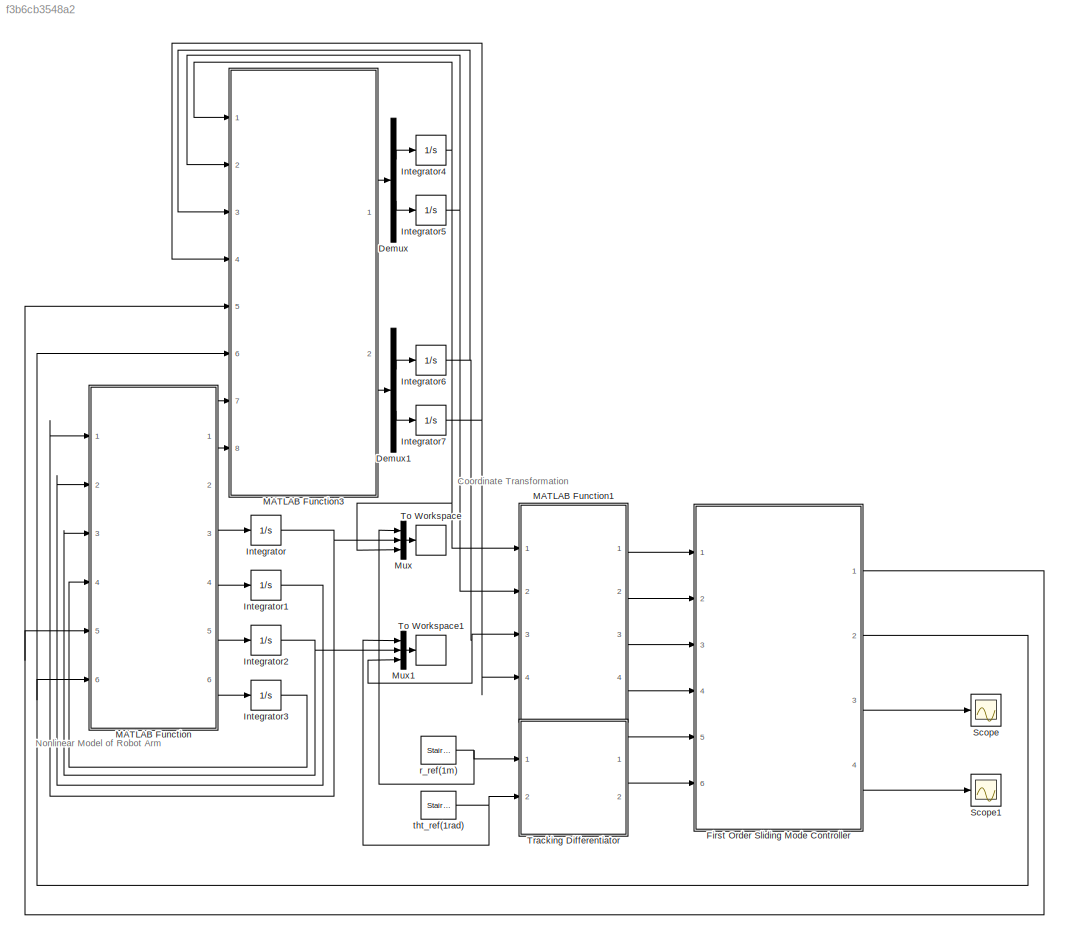
MODEL slx_f3b6cb3548a2
KIND model
CONFIG AbsTol = auto
CONFIG EnableMultiTasking = off
CONFIG FixedStep = 1e-4
CONFIG MaxStep = auto
CONFIG MinStep = auto
CONFIG RelTol = 1e-3
CONFIG SampleTimeConstraint = Unconstrained
CONFIG Solver = ode4
CONFIG SolverName = ode4
CONFIG StartTime = 0.0
CONFIG StopTime = 10
BLOCK [Demux] Demux
  DisplayOption = bar
  Outputs = 2
  Ports = [1, 2]
BLOCK [Demux] Demux1
  DisplayOption = bar
  Outputs = 2
  Ports = [1, 2]
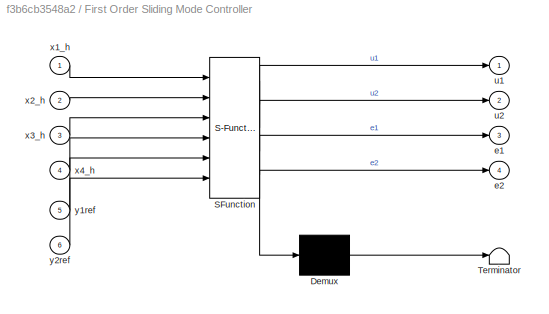
BLOCK [SubSystem] First Order Sliding Mode Controller
  ErrorFcn = Stateflow.Translate.translate
  PermitHierarchicalResolution = ExplicitOnly
  Ports = [6, 4]
  RequestExecContextInheritance = off
  SFBlockType = MATLAB Function
  TreatAsAtomicUnit = on
BLOCK [Demux] First Order Sliding Mode Controller/ Demux 
  Outputs = 1
  Ports = [1, 1]
BLOCK [S-Function] First Order Sliding Mode Controller/ SFunction 
  EnableBusSupport = on
  FunctionName = sf_sfun
  PortCounts = [6 5]
  Ports = [6, 5]
  SFcnIsStateOwnerBlock = off
  SFunctionDeploymentMode = off
  Tag = Stateflow S-Function Tdof_robot_z 3
BLOCK [Terminator] First Order Sliding Mode Controller/ Terminator 
BLOCK [Outport] First Order Sliding Mode Controller/e1
  IconDisplay = Port number
  Port = 3
BLOCK [Outport] First Order Sliding Mode Controller/e2
  IconDisplay = Port number
  Port = 4
BLOCK [Outport] First Order Sliding Mode Controller/u1
  IconDisplay = Port number
BLOCK [Outport] First Order Sliding Mode Controller/u2
  IconDisplay = Port number
  Port = 2
BLOCK [Inport] First Order Sliding Mode Controller/x1_h
  IconDisplay = Port number
BLOCK [Inport] First Order Sliding Mode Controller/x2_h
  IconDisplay = Port number
  Port = 2
BLOCK [Inport] First Order Sliding Mode Controller/x3_h
  IconDisplay = Port number
  Port = 3
BLOCK [Inport] First Order Sliding Mode Controller/x4_h
  IconDisplay = Port number
  Port = 4
BLOCK [Inport] First Order Sliding Mode Controller/y1ref
  IconDisplay = Port number
  Port = 5
BLOCK [Inport] First Order Sliding Mode Controller/y2ref
  IconDisplay = Port number
  Port = 6
BLOCK [Integrator] Integrator
  InitialCondition = 0.01
  Ports = [1, 1]
BLOCK [Integrator] Integrator1
  Ports = [1, 1]
BLOCK [Integrator] Integrator2
  Ports = [1, 1]
BLOCK [Integrator] Integrator3
  Ports = [1, 1]
BLOCK [Integrator] Integrator4
  InitialCondition = 0.3
  Ports = [1, 1]
BLOCK [Integrator] Integrator5
  InitialCondition = 0.01
  Ports = [1, 1]
BLOCK [Integrator] Integrator6
  InitialCondition = 0.4
  Ports = [1, 1]
BLOCK [Integrator] Integrator7
  InitialCondition = 0.01
  Ports = [1, 1]
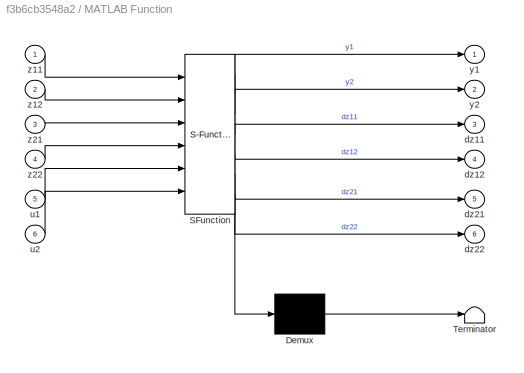
BLOCK [SubSystem] MATLAB Function
  ErrorFcn = Stateflow.Translate.translate
  PermitHierarchicalResolution = ExplicitOnly
  Ports = [6, 6]
  RequestExecContextInheritance = off
  SFBlockType = MATLAB Function
  TreatAsAtomicUnit = on
BLOCK [Demux] MATLAB Function/ Demux 
  Outputs = 1
  Ports = [1, 1]
BLOCK [S-Function] MATLAB Function/ SFunction 
  EnableBusSupport = on
  FunctionName = sf_sfun
  PortCounts = [6 7]
  Ports = [6, 7]
  SFcnIsStateOwnerBlock = off
  SFunctionDeploymentMode = off
  Tag = Stateflow S-Function Tdof_robot_z 2
BLOCK [Terminator] MATLAB Function/ Terminator 
BLOCK [Outport] MATLAB Function/dz11
  IconDisplay = Port number
  Port = 3
BLOCK [Outport] MATLAB Function/dz12
  IconDisplay = Port number
  Port = 4
BLOCK [Outport] MATLAB Function/dz21
  IconDisplay = Port number
  Port = 5
BLOCK [Outport] MATLAB Function/dz22
  IconDisplay = Port number
  Port = 6
BLOCK [Inport] MATLAB Function/u1
  IconDisplay = Port number
  Port = 5
BLOCK [Inport] MATLAB Function/u2
  IconDisplay = Port number
  Port = 6
BLOCK [Outport] MATLAB Function/y1
  IconDisplay = Port number
BLOCK [Outport] MATLAB Function/y2
  IconDisplay = Port number
  Port = 2
BLOCK [Inport] MATLAB Function/z11
  IconDisplay = Port number
BLOCK [Inport] MATLAB Function/z12
  IconDisplay = Port number
  Port = 2
BLOCK [Inport] MATLAB Function/z21
  IconDisplay = Port number
  Port = 3
BLOCK [Inport] MATLAB Function/z22
  IconDisplay = Port number
  Port = 4
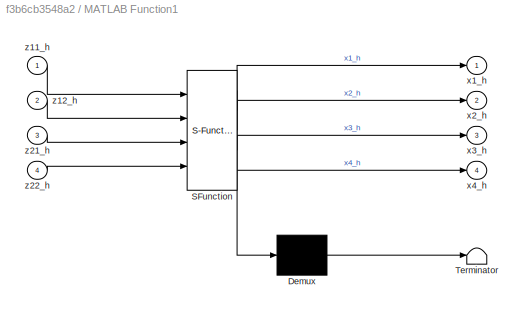
BLOCK [SubSystem] MATLAB Function1
  ErrorFcn = Stateflow.Translate.translate
  PermitHierarchicalResolution = ExplicitOnly
  Ports = [4, 4]
  RequestExecContextInheritance = off
  SFBlockType = MATLAB Function
  TreatAsAtomicUnit = on
BLOCK [Demux] MATLAB Function1/ Demux 
  Outputs = 1
  Ports = [1, 1]
BLOCK [S-Function] MATLAB Function1/ SFunction 
  EnableBusSupport = on
  FunctionName = sf_sfun
  PortCounts = [4 5]
  Ports = [4, 5]
  SFcnIsStateOwnerBlock = off
  SFunctionDeploymentMode = off
  Tag = Stateflow S-Function Tdof_robot_z 1
BLOCK [Terminator] MATLAB Function1/ Terminator 
BLOCK [Outport] MATLAB Function1/x1_h
  IconDisplay = Port number
BLOCK [Outport] MATLAB Function1/x2_h
  IconDisplay = Port number
  Port = 2
BLOCK [Outport] MATLAB Function1/x3_h
  IconDisplay = Port number
  Port = 3
BLOCK [Outport] MATLAB Function1/x4_h
  IconDisplay = Port number
  Port = 4
BLOCK [Inport] MATLAB Function1/z11_h
  IconDisplay = Port number
BLOCK [Inport] MATLAB Function1/z12_h
  IconDisplay = Port number
  Port = 2
BLOCK [Inport] MATLAB Function1/z21_h
  IconDisplay = Port number
  Port = 3
BLOCK [Inport] MATLAB Function1/z22_h
  IconDisplay = Port number
  Port = 4
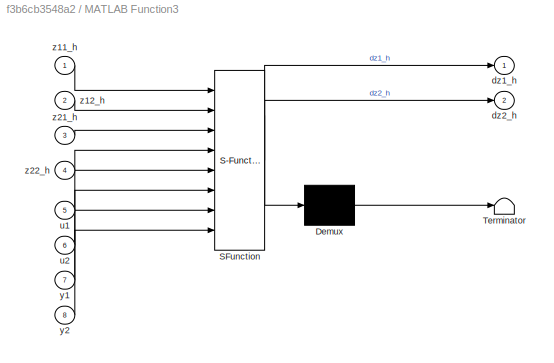
BLOCK [SubSystem] MATLAB Function3
  ErrorFcn = Stateflow.Translate.translate
  PermitHierarchicalResolution = ExplicitOnly
  Ports = [8, 2]
  RequestExecContextInheritance = off
  SFBlockType = MATLAB Function
  TreatAsAtomicUnit = on
BLOCK [Demux] MATLAB Function3/ Demux 
  Outputs = 1
  Ports = [1, 1]
BLOCK [S-Function] MATLAB Function3/ SFunction 
  EnableBusSupport = on
  FunctionName = sf_sfun
  PortCounts = [8 3]
  Ports = [8, 3]
  SFcnIsStateOwnerBlock = off
  SFunctionDeploymentMode = off
  Tag = Stateflow S-Function Tdof_robot_z 5
BLOCK [Terminator] MATLAB Function3/ Terminator 
BLOCK [Outport] MATLAB Function3/dz1_h
  IconDisplay = Port number
BLOCK [Outport] MATLAB Function3/dz2_h
  IconDisplay = Port number
  Port = 2
BLOCK [Inport] MATLAB Function3/u1
  IconDisplay = Port number
  Port = 5
BLOCK [Inport] MATLAB Function3/u2
  IconDisplay = Port number
  Port = 6
BLOCK [Inport] MATLAB Function3/y1
  IconDisplay = Port number
  Port = 7
BLOCK [Inport] MATLAB Function3/y2
  IconDisplay = Port number
  Port = 8
BLOCK [Inport] MATLAB Function3/z11_h
  IconDisplay = Port number
BLOCK [Inport] MATLAB Function3/z12_h
  IconDisplay = Port number
  Port = 2
BLOCK [Inport] MATLAB Function3/z21_h
  IconDisplay = Port number
  Port = 3
BLOCK [Inport] MATLAB Function3/z22_h
  IconDisplay = Port number
  Port = 4
BLOCK [Mux] Mux
  DisplayOption = bar
  Inputs = 3
  Ports = [3, 1]
BLOCK [Mux] Mux1
  DisplayOption = bar
  Inputs = 3
  Ports = [3, 1]
BLOCK [Scope] Scope
  Floating = off
  NumInputPorts = 1
  Ports = [1]
  ScopeSpecificationString = Simulink.scopes.TimeScopeBlockCfg('CurrentConfiguration', extmgr.ConfigurationSet(extmgr.Configuration('Core','General UI',true),extmgr.Configuration('Core','Source UI',true),extmgr.Configuration('Sources','WiredSimulink',true),extmgr.Configuration('Visuals','Time Domain',true,'SerializedDisplays',{struct('MinYLimReal','-2.31251','MaxYLimReal','0.81248','YLabelReal','','MinYLimMag','0.00000','MaxY...<+1429ch>
BLOCK [Scope] Scope1
  Floating = off
  NumInputPorts = 1
  Ports = [1]
  ScopeSpecificationString = Simulink.scopes.TimeScopeBlockCfg('CurrentConfiguration', extmgr.ConfigurationSet(extmgr.Configuration('Core','General UI',true),extmgr.Configuration('Core','Source UI',true),extmgr.Configuration('Sources','WiredSimulink',true,'DataLoggingVariableName','ScopeData1'),extmgr.Configuration('Visuals','Time Domain',true,'SerializedDisplays',{struct('MinYLimReal','-1.12033','MaxYLimReal','1.08297','YLab...<+1397ch>
BLOCK [ToWorkspace] To Workspace
  FixptAsFi = on
  MaxDataPoints = inf
  Ports = [1]
  SampleTime = -1
  Save2DSignal = 3-D array (concatenate along third dimension)
  VariableName = Position
BLOCK [ToWorkspace] To Workspace1
  FixptAsFi = on
  MaxDataPoints = inf
  Ports = [1]
  SampleTime = -1
  Save2DSignal = 3-D array (concatenate along third dimension)
  VariableName = Angle
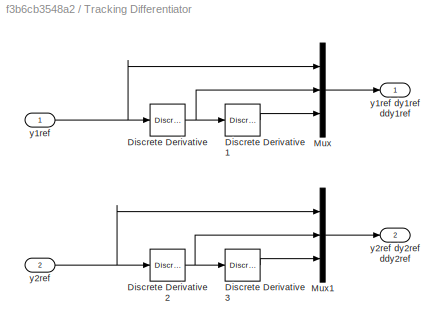
BLOCK [SubSystem] Tracking Differentiator
  Ports = [2, 2]
  RequestExecContextInheritance = off
BLOCK [Reference] Tracking Differentiator/Discrete Derivative  REF=simulink/Discrete/Discrete Derivative
  Ports = [1, 1]
  SourceBlock = simulink/Discrete/Discrete Derivative
  SourceProductBaseCode = SL
  SourceProductName = Simulink
  SourceType = Discrete Derivative
BLOCK [Reference] Tracking Differentiator/Discrete Derivative1  REF=simulink/Discrete/Discrete Derivative
  Ports = [1, 1]
  SourceBlock = simulink/Discrete/Discrete Derivative
  SourceProductBaseCode = SL
  SourceProductName = Simulink
  SourceType = Discrete Derivative
BLOCK [Reference] Tracking Differentiator/Discrete Derivative2  REF=simulink/Discrete/Discrete Derivative
  Ports = [1, 1]
  SourceBlock = simulink/Discrete/Discrete Derivative
  SourceProductBaseCode = SL
  SourceProductName = Simulink
  SourceType = Discrete Derivative
BLOCK [Reference] Tracking Differentiator/Discrete Derivative3  REF=simulink/Discrete/Discrete Derivative
  Ports = [1, 1]
  SourceBlock = simulink/Discrete/Discrete Derivative
  SourceProductBaseCode = SL
  SourceProductName = Simulink
  SourceType = Discrete Derivative
BLOCK [Mux] Tracking Differentiator/Mux
  DisplayOption = bar
  Inputs = 3
  Ports = [3, 1]
BLOCK [Mux] Tracking Differentiator/Mux1
  DisplayOption = bar
  Inputs = 3
  Ports = [3, 1]
BLOCK [Inport] Tracking Differentiator/y1ref
  IconDisplay = Port number
BLOCK [Outport] Tracking Differentiator/y1ref dy1ref ddy1ref
  IconDisplay = Port number
BLOCK [Inport] Tracking Differentiator/y2ref
  IconDisplay = Port number
  Port = 2
BLOCK [Outport] Tracking Differentiator/y2ref dy2ref ddy2ref
  IconDisplay = Port number
  Port = 2
BLOCK [Reference] r_ref(1m)  REF=powerlib_meascontrol/Pulse & Signal
Generators/Stair
Generator
  Ports = [0, 1]
  SourceBlock = powerlib_meascontrol/Pulse & Signal\nGenerators/Stair\nGenerator
  SourceProductBaseCode = PS
  SourceProductName = Simscape Power Systems
  SourceType = Stair Generator
BLOCK [Reference] tht_ref(1rad)  REF=powerlib_meascontrol/Pulse & Signal
Generators/Stair
Generator
  Ports = [0, 1]
  SourceBlock = powerlib_meascontrol/Pulse & Signal\nGenerators/Stair\nGenerator
  SourceProductBaseCode = PS
  SourceProductName = Simscape Power Systems
  SourceType = Stair Generator
ANNOTATION (root): Coordinate Transformation
ANNOTATION (root): Nonlinear Model of Robot Arm
LINE Demux1:1 -> Integrator6:1
LINE Demux1:2 -> Integrator7:1
LINE Demux:1 -> Integrator4:1
LINE Demux:2 -> Integrator5:1
NET First Order Sliding Mode Controller:1 -> MATLAB Function3:5, MATLAB Function:5
NET First Order Sliding Mode Controller:2 -> MATLAB Function3:6, MATLAB Function:6
LINE First Order Sliding Mode Controller:3 -> Scope:1
LINE First Order Sliding Mode Controller:4 -> Scope1:1
LINE Integrator1:1 -> MATLAB Function:2
NET Integrator2:1 -> MATLAB Function:3, Mux1:2
LINE Integrator3:1 -> MATLAB Function:4
NET Integrator4:1 -> MATLAB Function1:1, MATLAB Function3:1, Mux:3
NET Integrator5:1 -> MATLAB Function1:2, MATLAB Function3:2
NET Integrator6:1 -> MATLAB Function1:3, MATLAB Function3:3, Mux1:3
NET Integrator7:1 -> MATLAB Function1:4, MATLAB Function3:4
NET Integrator:1 -> MATLAB Function:1, Mux:2
LINE MATLAB Function1:1 -> First Order Sliding Mode Controller:1
LINE MATLAB Function1:2 -> First Order Sliding Mode Controller:2
LINE MATLAB Function1:3 -> First Order Sliding Mode Controller:3
LINE MATLAB Function1:4 -> First Order Sliding Mode Controller:4
LINE MATLAB Function3:1 -> Demux:1
LINE MATLAB Function3:2 -> Demux1:1
LINE MATLAB Function:1 -> MATLAB Function3:7
LINE MATLAB Function:2 -> MATLAB Function3:8
LINE MATLAB Function:3 -> Integrator:1
LINE MATLAB Function:4 -> Integrator1:1
LINE MATLAB Function:5 -> Integrator2:1
LINE MATLAB Function:6 -> Integrator3:1
LINE Mux1:1 -> To Workspace1:1
LINE Mux:1 -> To Workspace:1
LINE Tracking Differentiator/Discrete Derivative1:1 -> Tracking Differentiator/Mux:3
NET Tracking Differentiator/Discrete Derivative2:1 -> Tracking Differentiator/Discrete Derivative3:1, Tracking Differentiator/Mux1:2
LINE Tracking Differentiator/Discrete Derivative3:1 -> Tracking Differentiator/Mux1:3
NET Tracking Differentiator/Discrete Derivative:1 -> Tracking Differentiator/Discrete Derivative1:1, Tracking Differentiator/Mux:2
LINE Tracking Differentiator/Mux1:1 -> Tracking Differentiator/y2ref dy2ref ddy2ref:1
LINE Tracking Differentiator/Mux:1 -> Tracking Differentiator/y1ref dy1ref ddy1ref:1
NET Tracking Differentiator/y1ref:1 -> Tracking Differentiator/Discrete Derivative:1, Tracking Differentiator/Mux:1
NET Tracking Differentiator/y2ref:1 -> Tracking Differentiator/Discrete Derivative2:1, Tracking Differentiator/Mux1:1
LINE Tracking Differentiator:1 -> First Order Sliding Mode Controller:5
LINE Tracking Differentiator:2 -> First Order Sliding Mode Controller:6
NET r_ref(1m):1 -> Mux:1, Tracking Differentiator:1
NET tht_ref(1rad):1 -> Mux1:1, Tracking Differentiator:2
note: NET lines group one-source signal fan-out (src -> all destinations, sorted); 1:1 wires keep LINE
CHART MATLAB Function1 states=1 transitions=1
  STATE_LABEL 'eML_blk_kernel()'
  STATE_LABEL 'SCRIPT:\nfunction [x1_h,x2_h,x3_h,x4_h] = CTI(z11_h,z12_h,z21_h,z22_h)\n\nx1_h = z11_h;\nx2_h = z12_h;\nx3_h = z21_h;\nx4_h = z22_h;\n\n'
CHART MATLAB Function states=1 transitions=1
  STATE_LABEL 'eML_blk_kernel()'
  STATE_LABEL 'SCRIPT:\nfunction [y1,y2,dz11,dz12,dz21,dz22] = Tdof_robot_z(z11,z12,z21,z22,u1,u2)\ng = 9.8; m = 1;\nphi1 = [0;z11*z22^2-g*sin(z21)+u1/m];\nphi2 = [0;1/z11^2*(-2*z11*z12*z22-g*z11*cos(z21)+u2/m)];\n\nA1 = [0 1;0 0];\nC1 = [1 0];\nz1 = [z11;z12];\ndz1 = A1*z1+phi1;\ny1 = C1*z1;\n\nA2 = [0 1;0 0];\nC2 = [1 0];\nz2 = [z21;z22];\ndz2 = A2*z2+phi2;\ny2 = C2*z2;\n\ndz11 = dz1(1);\ndz12 = dz1(2);\ndz21 = dz2(1);\ndz22 = dz2...<+11ch>'
CHART First Order Sliding Mode Controller states=1 transitions=1
  STATE_LABEL 'eML_blk_kernel()'
  STATE_LABEL 'SCRIPT:\nfunction [u1,u2,e1,e2] = FOSMC(x1_h,x2_h,x3_h,x4_h,y1ref,y2ref)\n%% Manipulator Mass and Gravity\nm = 1; g = 9.8;\n%% Attractivity and Stability constants for sliding surface\nk1 = 20; k2 = 20;\nlambda1 = 20; lambda2 = 20;\ny1 = x1_h;\ny2 = x3_h;\ndy1 = x2_h;\ndy2 = x4_h;\ndy1ref = y1ref(2);\ndy2ref = y2ref(2);\nddy1ref = y1ref(3);\nddy2ref = y2ref(3);\n%% Errors and their derivatives\ne1 = y1-y1ref(1);\n...<+300ch>'
CHART MATLAB Function3 states=1 transitions=1
  STATE_LABEL 'eML_blk_kernel()'
  STATE_LABEL 'SCRIPT:\nfunction [dz1_h, dz2_h] = High_gain_observer(z11_h,z12_h,z21_h,z22_h,u1,u2,y1,y2)\ng = 9.8; m = 1;\nphi1_h = [0;z11_h*z22_h^2-g*sin(z21_h)+u1/m];\nphi2_h = [0;1/z11_h^2*(-2*z11_h*z12_h*z22_h-g*z11_h*cos(z21_h)+u2/m)];\nteta = 10;\nS1 = zeros(length(phi1_h),length(phi1_h));\nS2 = zeros(length(phi2_h),length(phi2_h));\nfor i=1:length(phi1_h)\n    for j=1:length(phi2_h)\n        C = factorial(i+j-2)/(...<+333ch>'
